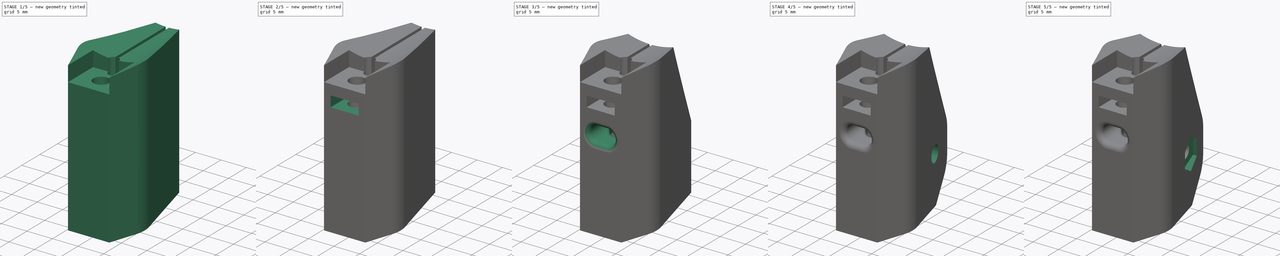
[diagram: build sequence overview — one tinted view per stage of 5, left to right]
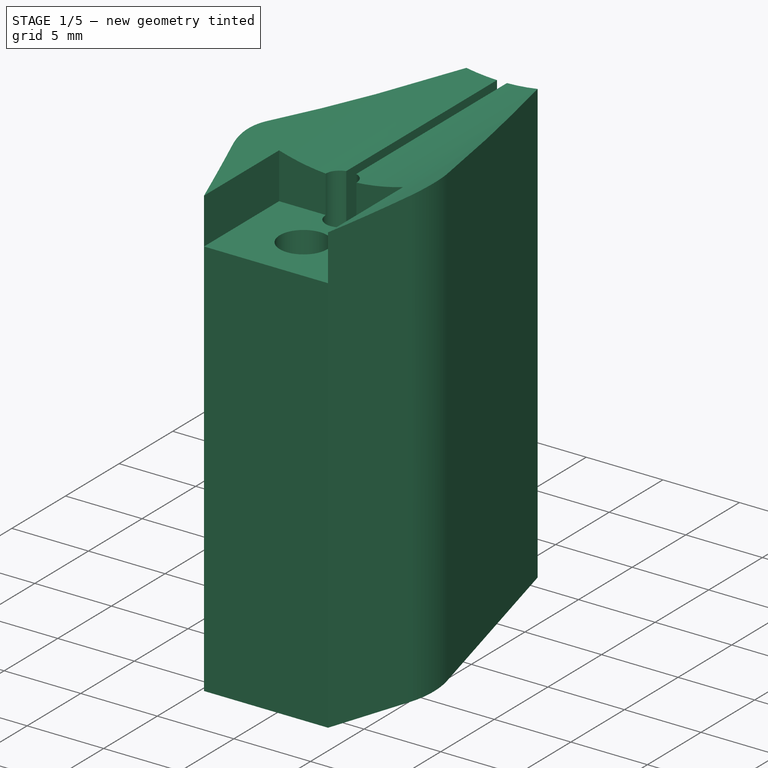
[diagram: stage 1 of 5 — iso view after this stage's code; geometry added in this stage tinted green]
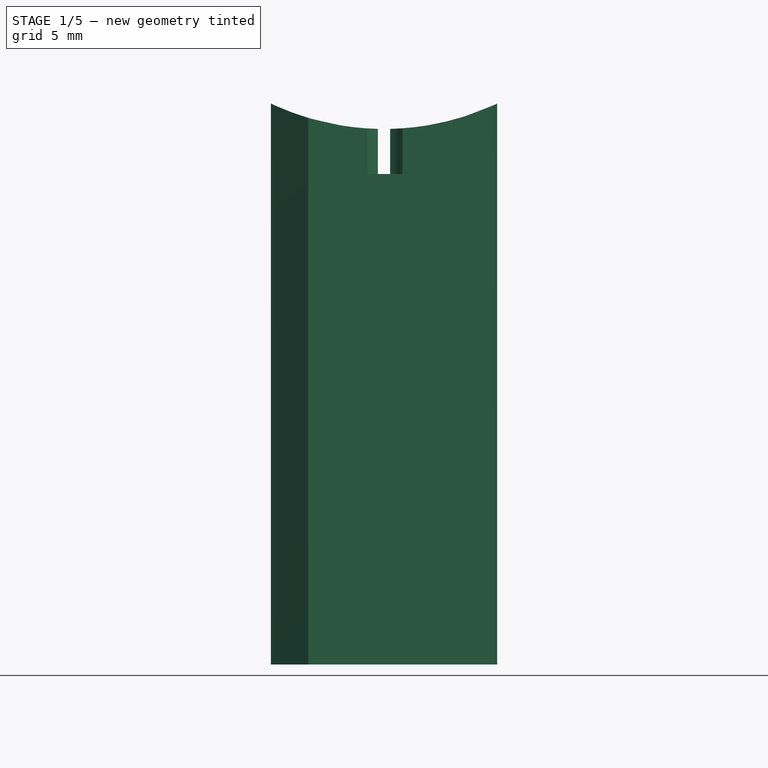
[diagram: stage 1 of 5 — front view after this stage's code; geometry added in this stage tinted green]
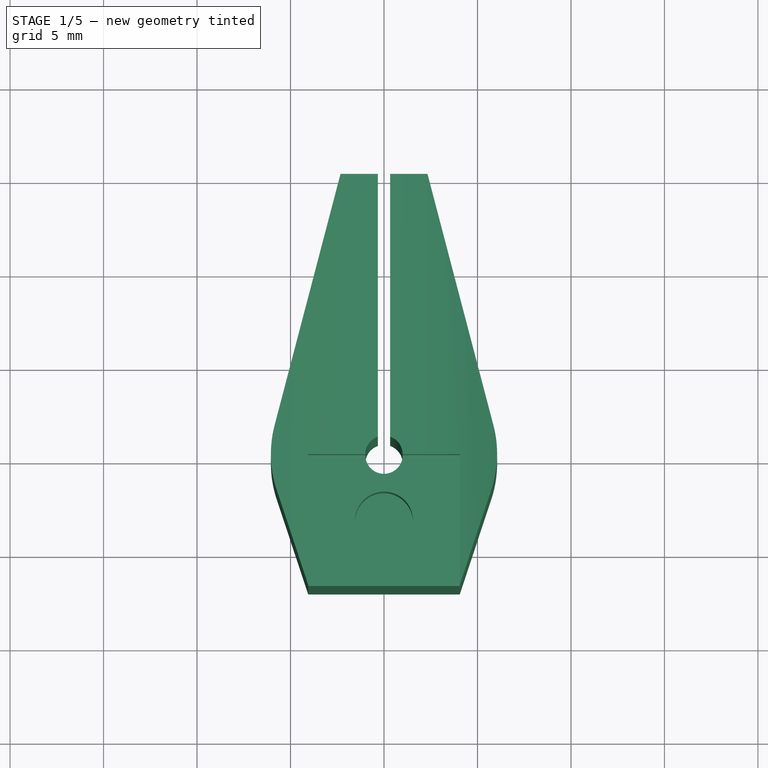
[diagram: stage 1 of 5 — top view after this stage's code; geometry added in this stage tinted green]
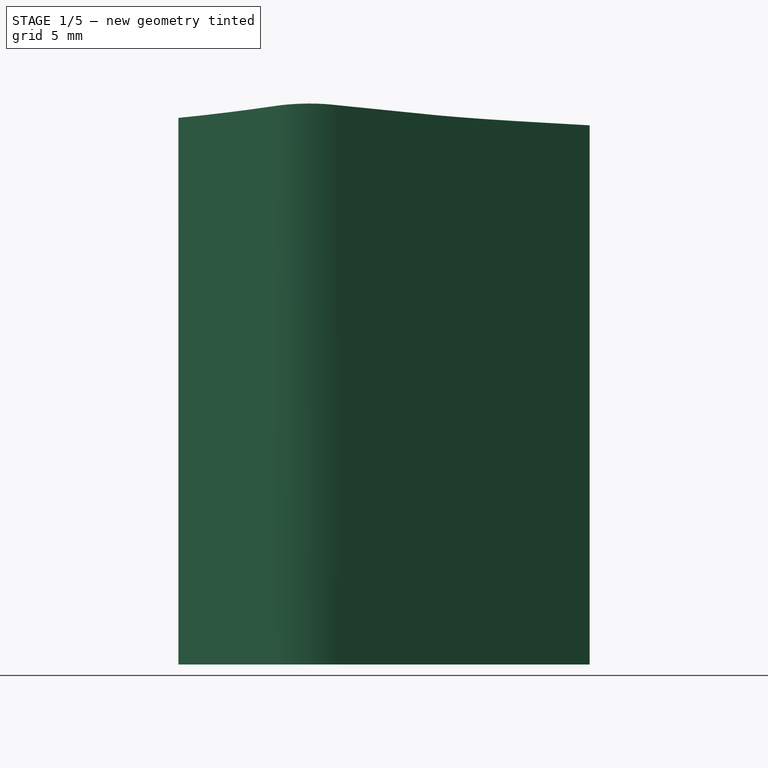
[diagram: stage 1 of 5 — right view after this stage's code; geometry added in this stage tinted green]
FCSTD DOCUMENT  (FreeCAD 0.16RUnknown)
Label: joint-i.010.bottom
License: All rights reserved
LicenseURL: http://en.wikipedia.org/wiki/All_rights_reserved
objects: Sketcher::SketchObject×11, PartDesign::Pocket×7, Part::Extrusion×4, Part::Cut×3, Part::Fillet×2, Part::Chamfer×2
note: 36 computed .brp shape members not serialized (recipe doc carries the construction recipe); baked Part::Feature solids carry a one-line shape summary decoded from their .brp

FEATURE [Sketcher::SketchObject] Sketch
  sketch-geometry (15):
    g0: Circle [constr] CenterX=0 CenterY=0 CenterZ=0 NormalX=0 NormalY=0 NormalZ=1 Radius=4.05
    g1: ArcOfCircle CenterX=0 CenterY=0 CenterZ=0 NormalX=0 NormalY=0 NormalZ=1 Radius=6.05 StartAngle=2.88541 EndAngle=3.46227
    g2: ArcOfCircle CenterX=0 CenterY=0 CenterZ=0 NormalX=0 NormalY=0 NormalZ=1 Radius=6.05 StartAngle=5.96251 EndAngle=6.53937
    g3: LineSegment StartX=-5.74158 StartY=-1.90703 StartZ=0 EndX=-4.05 EndY=-7 EndZ=0
    g4: LineSegment StartX=-4.05 StartY=-7 StartZ=0 EndX=4.05 EndY=-7 EndZ=0
    g5: LineSegment StartX=4.05 StartY=-7 StartZ=0 EndX=5.74158 EndY=-1.90703 EndZ=0
    g6: LineSegment StartX=-5.85256 StartY=1.533 StartZ=0 EndX=-2.325 EndY=15 EndZ=0
    g7: LineSegment StartX=-2.325 StartY=15 StartZ=0 EndX=-0.325 EndY=15 EndZ=0
    g8: LineSegment StartX=-0.325 StartY=15 StartZ=0 EndX=-0.325 EndY=0.945714 EndZ=0
    g9: LineSegment [constr] StartX=-0.325 StartY=0.945714 StartZ=0 EndX=0.325 EndY=0.945714 EndZ=0
    g10: LineSegment StartX=0.325 StartY=0.945714 StartZ=0 EndX=0.325 EndY=15 EndZ=0
    g11: LineSegment StartX=0.325 StartY=15 StartZ=0 EndX=2.325 EndY=15 EndZ=0
    g12: LineSegment StartX=2.325 StartY=15 StartZ=0 EndX=5.85256 EndY=1.533 EndZ=0
    g13: ArcOfCircle CenterX=0 CenterY=0 CenterZ=0 NormalX=0 NormalY=0 NormalZ=1 Radius=1 StartAngle=1.90181 EndAngle=7.52297
    g14: LineSegment [constr] StartX=4.05 StartY=0 StartZ=0 EndX=6.05 EndY=0 EndZ=0
  constraints (44):
    c: Coincident(g0,g-1)
    c: Radius(g0) = 4.05
    c: Coincident(g0,g1)
    c: Coincident(g0,g2)
    c: Equal(g1,g2)
    c: Coincident(g3,g4)
    c: Horizontal(g4)
    c: Coincident(g4,g5)
    c: Coincident(g1,g3)
    c: Coincident(g2,g5)
    c: Coincident(g6,g7)
    c: Horizontal(g7)
    c: Coincident(g7,g8)
    c: Vertical(g8)
    c: Coincident(g8,g9)
    c: Horizontal(g9)
    c: Coincident(g9,g10)
    c: Vertical(g10)
    c: Coincident(g10,g11)
    c: Horizontal(g11)
    c: Coincident(g11,g12)
    c: Coincident(g1,g6)
    c: Coincident(g2,g12)
    c: Equal(g8,g10)
    c: Coincident(g0,g13)
    c: Coincident(g8,g13)
    c: Coincident(g9,g13)
    c: Radius(g13) = 1
    c: DistanceX(g9,g9) = 0.65
    c: Horizontal(g14)
    c: PointOnObject(g14,g0)
    c: PointOnObject(g14,g2)
    c: PointOnObject(g14,g-1)
    c: DistanceX(g14,g14) = 2
    c: DistanceX(g4,g4) = 8.1
    c: Tangent(g3,g1)
    c: Tangent(g5,g2)
    c: Equal(g3,g5)
    c: DistanceY(g4,g-1) = 7
    c: Tangent(g6,g1)
    c: Tangent(g12,g2)
    c: Equal(g6,g12)
    c: DistanceX(g7,g7) = 2
    c: DistanceY(g-1,g7) = 15
FEATURE [Part::Extrusion] Extrude
  Base = -> Sketch
  Dir = (0,0,30)
  Solid = true
FEATURE [Sketcher::SketchObject] Sketch001
  ExternalGeometry = -> [Extrude]
  Placement = pos=(0,-7,0) rot=(1,0,0;1.5708rad)
  Support = -> Extrude [Face3]
  sketch-geometry (3):
    g0: LineSegment StartX=-6.05 StartY=30 StartZ=0 EndX=0 EndY=30 EndZ=0
    g1: LineSegment StartX=0 StartY=30 StartZ=0 EndX=6.05 EndY=30 EndZ=0
    g2: ArcOfCircle CenterX=0 CenterY=42.7914 CenterZ=0 NormalX=0 NormalY=0 NormalZ=1 Radius=14.15 StartAngle=4.2706 EndAngle=5.15418
  constraints (10):
    c: Horizontal(g0)
    c: Coincident(g0,g1)
    c: Horizontal(g1)
    c: PointOnObject(g0,g-2)
    c: Equal(g0,g1)
    c: PointOnObject(g0,g-3)
    c: DistanceX(g0,g1) = 12.1
    c: Coincident(g0,g2)
    c: Coincident(g1,g2)
    c: Radius(g2) = 14.15
FEATURE [PartDesign::Pocket] Pocket
  Length = 5
  Sketch = -> Sketch001
  Type = 1
FEATURE [Sketcher::SketchObject] Sketch002
  ExternalGeometry = -> [Pocket]
  Placement = pos=(0,-7,0) rot=(1,0,0;1.5708rad)
  Support = -> Pocket [Face6]
  sketch-geometry (4):
    g0: LineSegment StartX=-4.05 StartY=29.2334 StartZ=0 EndX=-4.05 EndY=26.2334 EndZ=0
    g1: LineSegment StartX=-4.05 StartY=26.2334 StartZ=0 EndX=4.05 EndY=26.2334 EndZ=0
    g2: LineSegment StartX=4.05 StartY=26.2334 StartZ=0 EndX=4.05 EndY=29.2334 EndZ=0
    g3: ArcOfCircle CenterX=0 CenterY=42.7914 CenterZ=0 NormalX=0 NormalY=0 NormalZ=1 Radius=14.15 StartAngle=4.42211 EndAngle=5.00267
  constraints (11):
    c: Vertical(g0)
    c: Coincident(g0,g1)
    c: Horizontal(g1)
    c: Coincident(g1,g2)
    c: Vertical(g2)
    c: Coincident(g0,g-3)
    c: Coincident(g2,g-3)
    c: DistanceY(g2,g2) = 3
    c: Coincident(g0,g3)
    c: Coincident(g2,g3)
    c: Equal(g3,g-3)
FEATURE [PartDesign::Pocket] Pocket001
  Length = 7
  Sketch = -> Sketch002
  Type = 0
FEATURE [Sketcher::SketchObject] Sketch003
  ExternalGeometry = -> [Pocket001]
  Placement = pos=(0,0,26.2334) rot=(0,0,1;0rad)
  Support = -> Pocket001 [Face17]
  sketch-geometry (3):
    g0: LineSegment [constr] StartX=-4.05 StartY=0 StartZ=0 EndX=-1.1e-11 EndY=-3.5 EndZ=0
    g1: LineSegment [constr] StartX=-1.1e-11 StartY=-3.5 StartZ=0 EndX=4.05 EndY=-7 EndZ=0
    g2: Circle CenterX=-1.1e-11 CenterY=-3.5 CenterZ=0 NormalX=0 NormalY=0 NormalZ=1 Radius=1.55
  constraints (7):
    c: Coincident(g0,g1)
    c: Coincident(g1,g-4)
    c: Coincident(g0,g-3)
    c: Equal(g0,g1)
    c: Parallel(g0,g1)
    c: Coincident(g0,g2)
    c: Radius(g2) = 1.55
FEATURE [PartDesign::Pocket] Pocket002
  Length = 5.5
  Sketch = -> Sketch003
  Type = 0
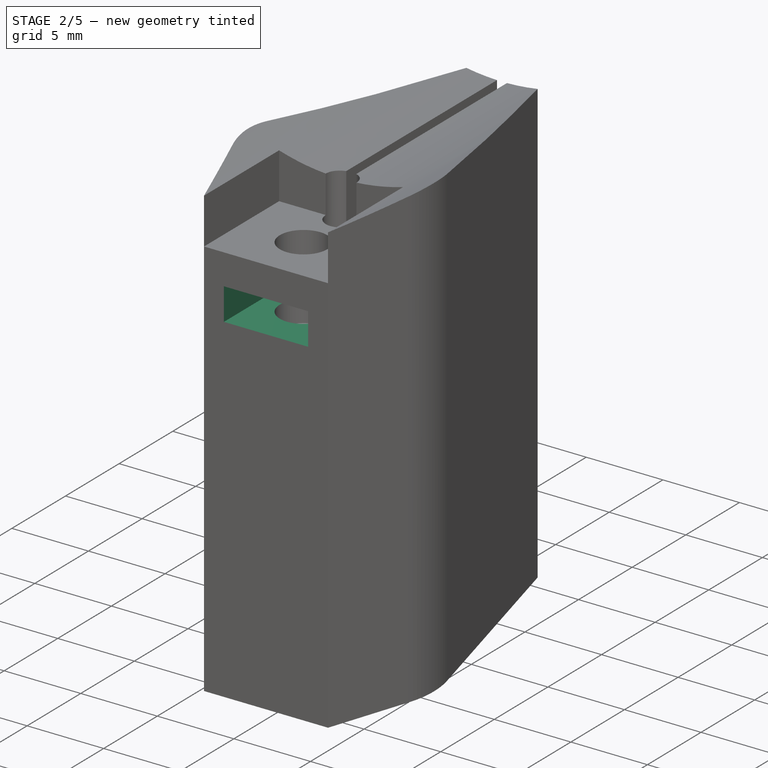
[diagram: stage 2 of 5 — iso view after this stage's code; geometry added in this stage tinted green]
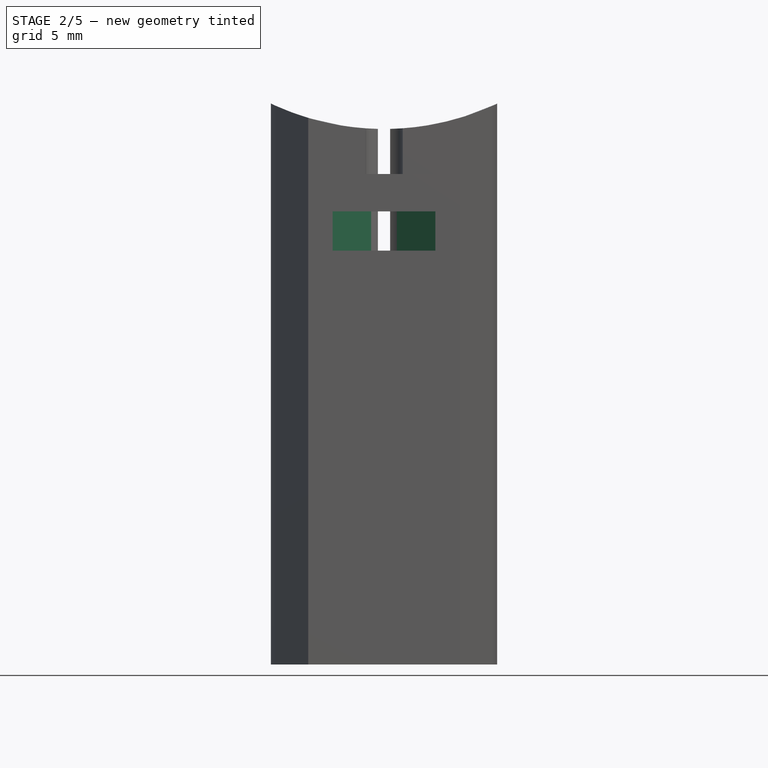
[diagram: stage 2 of 5 — front view after this stage's code; geometry added in this stage tinted green]
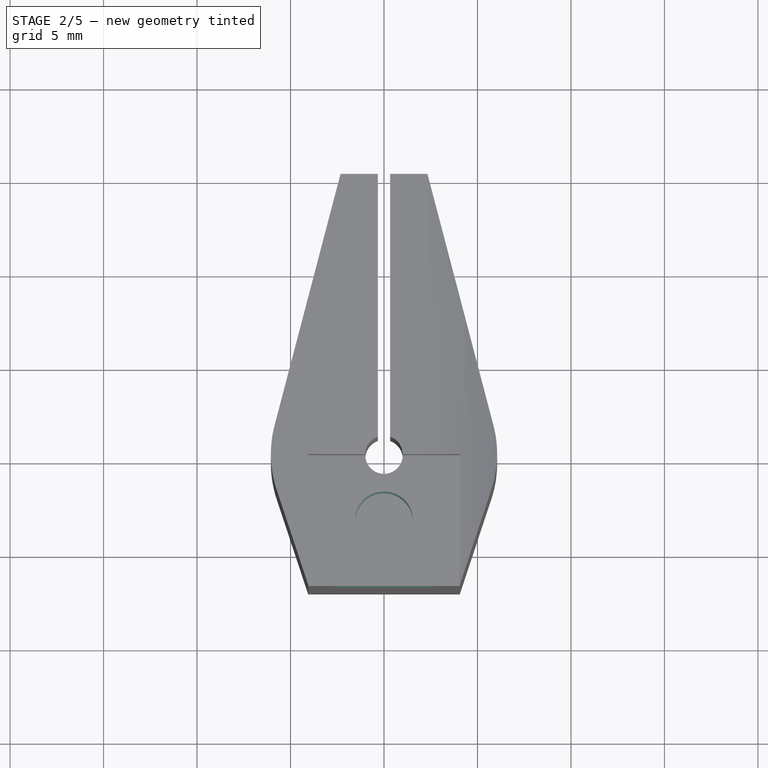
[diagram: stage 2 of 5 — top view after this stage's code; geometry added in this stage tinted green]
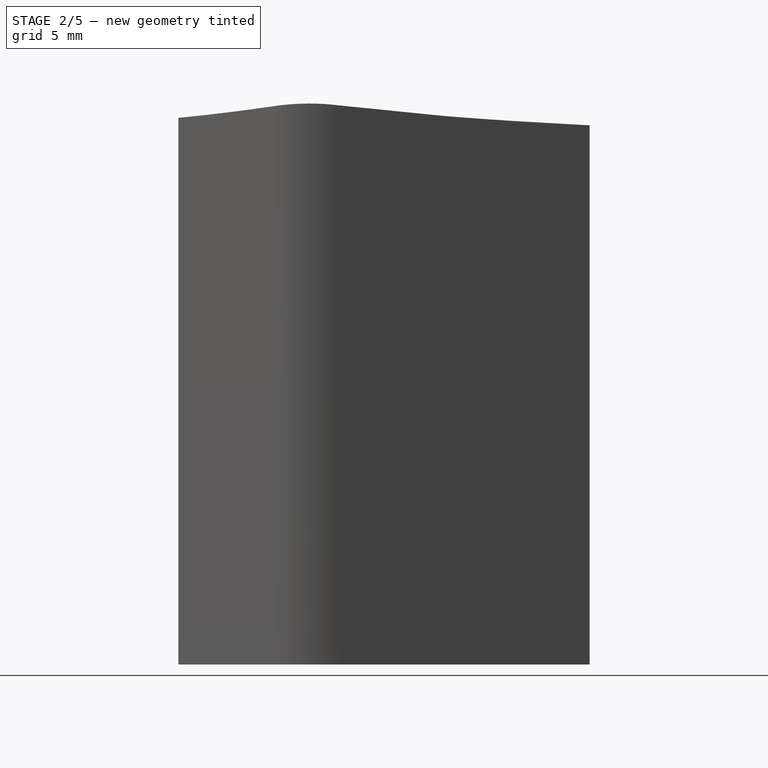
[diagram: stage 2 of 5 — right view after this stage's code; geometry added in this stage tinted green]
FEATURE [Sketcher::SketchObject] Sketch004
  ExternalGeometry = -> [Pocket002]
  Placement = pos=(0,0,26.2334) rot=(0,0,1;0rad)
  Support = -> Pocket002 [Face17]
  sketch-geometry (6):
    g0: LineSegment StartX=-2.75 StartY=-7 StartZ=0 EndX=-2.75 EndY=-1.91229 EndZ=0
    g1: LineSegment StartX=-2.75 StartY=-1.91229 StartZ=0 EndX=-1.1e-11 EndY=-0.324574 EndZ=0
    g2: LineSegment StartX=-1.1e-11 StartY=-0.324574 StartZ=0 EndX=2.75 EndY=-1.91229 EndZ=0
    g3: LineSegment StartX=2.75 StartY=-1.91229 StartZ=0 EndX=2.75 EndY=-7 EndZ=0
    g4: LineSegment StartX=2.75 StartY=-7 StartZ=0 EndX=-2.75 EndY=-7 EndZ=0
    g5: LineSegment [constr] StartX=-1.1e-11 StartY=-0.324574 StartZ=0 EndX=-1.1e-11 EndY=-3.5 EndZ=0
  constraints (17):
    c: Vertical(g0)
    c: Coincident(g0,g1)
    c: Coincident(g1,g2)
    c: Coincident(g2,g3)
    c: Vertical(g3)
    c: Coincident(g3,g4)
    c: Horizontal(g4)
    c: Coincident(g0,g4)
    c: DistanceX(g4,g4) = 5.5
    c: Angle(g1,g2) = 2.0944
    c: Equal(g1,g2)
    c: PointOnObject(g0,g-4)
    c: Vertical(g5)
    c: Coincident(g1,g5)
    c: Equal(g5,g1)
    c: Coincident(g5,g-3)
    c: Equal(g0,g3)
FEATURE [Part::Extrusion] Extrude001
  Base = -> Sketch004
  Dir = (0,0,-2.1)
  Placement = pos=(0,0,-2) rot=(0,0,1;0rad)
  Solid = true
FEATURE [Part::Cut] Cut
  Base = -> Pocket002
  Tool = -> Extrude001
FEATURE [Sketcher::SketchObject] Sketch005
  Placement = pos=(0,0,0) rot=(1,0,0;3.14159rad)
  Support = -> Cut [Face2]
  sketch-geometry (1):
    g0: Circle CenterX=0 CenterY=0 CenterZ=0 NormalX=0 NormalY=0 NormalZ=1 Radius=4.05
  constraints (2):
    c: Coincident(g0,g-1)
    c: Radius(g0) = 4.05
FEATURE [PartDesign::Pocket] Pocket003
  Length = 15
  Sketch = -> Sketch005
  Type = 0
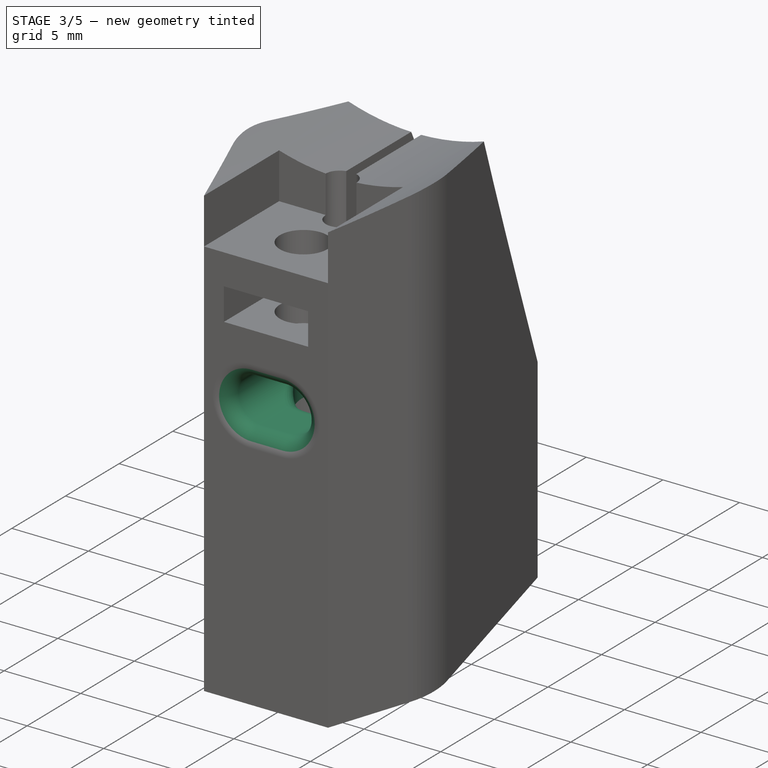
[diagram: stage 3 of 5 — iso view after this stage's code; geometry added in this stage tinted green]
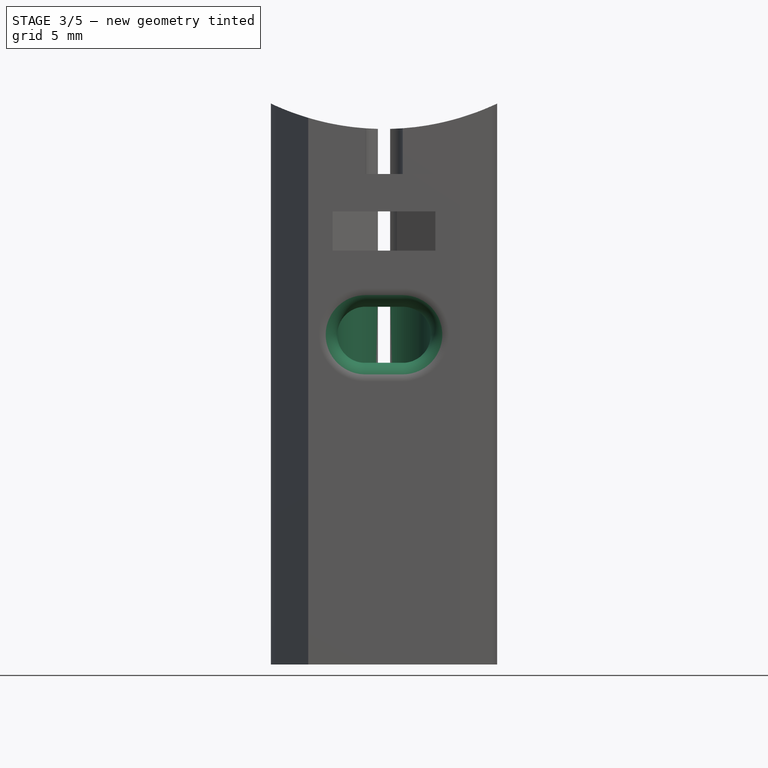
[diagram: stage 3 of 5 — front view after this stage's code; geometry added in this stage tinted green]
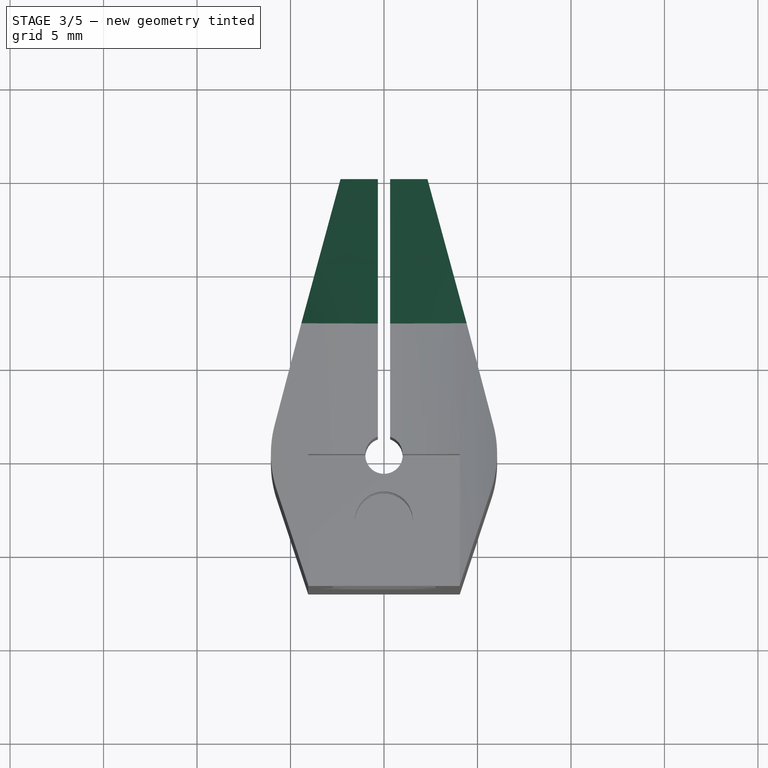
[diagram: stage 3 of 5 — top view after this stage's code; geometry added in this stage tinted green]
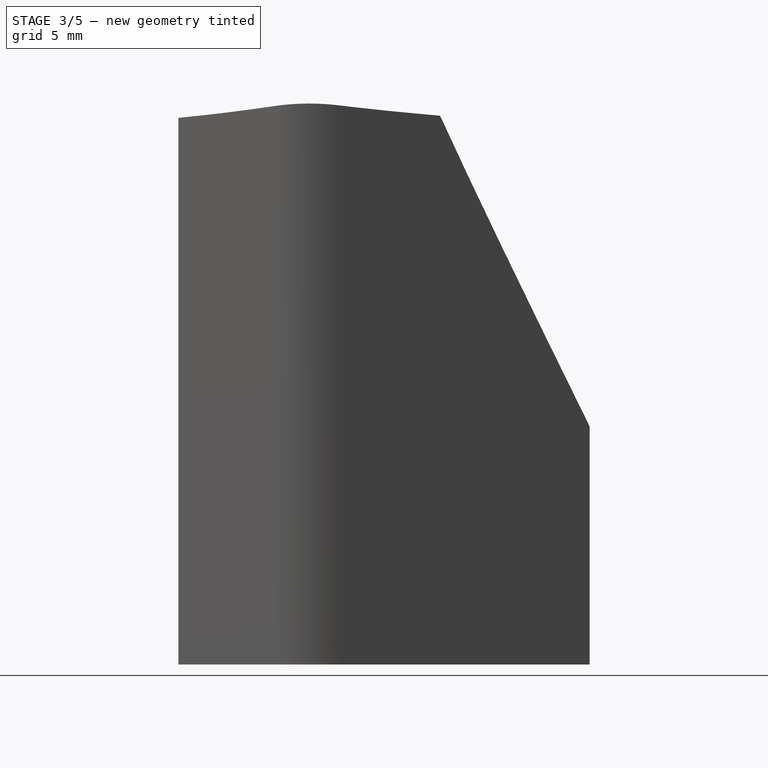
[diagram: stage 3 of 5 — right view after this stage's code; geometry added in this stage tinted green]
FEATURE [Sketcher::SketchObject] Sketch006
  ExternalGeometry = -> [Pocket003]
  Placement = pos=(0,0,15) rot=(1,0,0;3.14159rad)
  Support = -> Pocket003 [Face19]
  sketch-geometry (2):
    g0: Circle CenterX=0 CenterY=0 CenterZ=0 NormalX=0 NormalY=0 NormalZ=1 Radius=2.55
    g1: LineSegment [constr] StartX=2.55 StartY=0 StartZ=0 EndX=4.05 EndY=0 EndZ=0
  constraints (5):
    c: Coincident(g0,g-3)
    c: Horizontal(g1)
    c: Coincident(g1,g-3)
    c: PointOnObject(g1,g0)
    c: DistanceX(g1,g1) = 1.5
FEATURE [PartDesign::Pocket] Pocket004
  Length = 5
  Sketch = -> Sketch006
  Type = 0
FEATURE [Sketcher::SketchObject] Sketch007
  ExternalGeometry = -> [Pocket004]
  Placement = pos=(0,-7,0) rot=(1,0,0;1.5708rad)
  Support = -> Pocket004 [Face15]
  sketch-geometry (8):
    g0: LineSegment StartX=-1 StartY=19.1334 StartZ=0 EndX=1 EndY=19.1334 EndZ=0
    g1: LineSegment [constr] StartX=1 StartY=19.1334 StartZ=0 EndX=1 EndY=16.1334 EndZ=0
    g2: LineSegment StartX=1 StartY=16.1334 StartZ=0 EndX=-1 EndY=16.1334 EndZ=0
    g3: LineSegment [constr] StartX=-1 StartY=16.1334 StartZ=0 EndX=-1 EndY=19.1334 EndZ=0
    g4: ArcOfCircle CenterX=-1 CenterY=17.6334 CenterZ=0 NormalX=0 NormalY=0 NormalZ=1 Radius=1.5 StartAngle=1.5708 EndAngle=4.71239
    g5: ArcOfCircle CenterX=1 CenterY=17.6334 CenterZ=0 NormalX=0 NormalY=0 NormalZ=1 Radius=1.5 StartAngle=4.71239 EndAngle=7.85398
    g6: LineSegment [constr] StartX=-2.75 StartY=22.1334 StartZ=0 EndX=-1 EndY=19.1334 EndZ=0
    g7: LineSegment [constr] StartX=1 StartY=19.1334 StartZ=0 EndX=2.75 EndY=22.1334 EndZ=0
  constraints (22):
    c: Coincident(g0,g1)
    c: Coincident(g1,g2)
    c: Coincident(g2,g3)
    c: Coincident(g3,g0)
    c: Horizontal(g0)
    c: Horizontal(g2)
    c: Vertical(g1)
    c: Vertical(g3)
    c: PointOnObject(g5,g1)
    c: PointOnObject(g4,g3)
    c: Coincident(g0,g4)
    c: Coincident(g2,g4)
    c: Coincident(g1,g5)
    c: Coincident(g0,g5)
    c: DistanceY(g1,g1) = 3
    c: DistanceY(g0,g-3) = 3
    c: DistanceX(g2,g2) = 2
    c: Coincident(g7,g-3)
    c: Coincident(g0,g7)
    c: Coincident(g0,g6)
    c: Coincident(g6,g-3)
    c: Equal(g6,g7)
FEATURE [PartDesign::Pocket] Pocket005
  Length = 7
  Sketch = -> Sketch007
  Type = 0
  UpToFace = -> Pocket004 [Face23]
FEATURE [Part::Fillet] Fillet
  Base = -> Pocket005
  Edges = 9 edges r=1: [Edge55,Edge56,Edge57,Edge58,Edge79,Edge80,Edge81,Edge82,Edge83]
FEATURE [Part::Chamfer] Chamfer
  Base = -> Fillet
  Edges = 2 edges: [Edge73 r1=16 r2=8,Edge91 r1=16 r2=8]
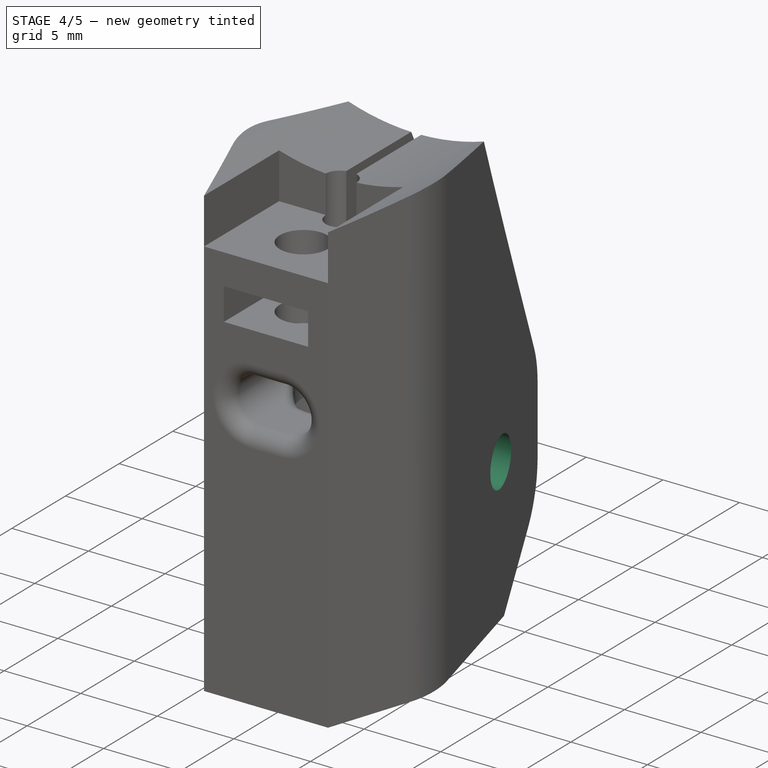
[diagram: stage 4 of 5 — iso view after this stage's code; geometry added in this stage tinted green]
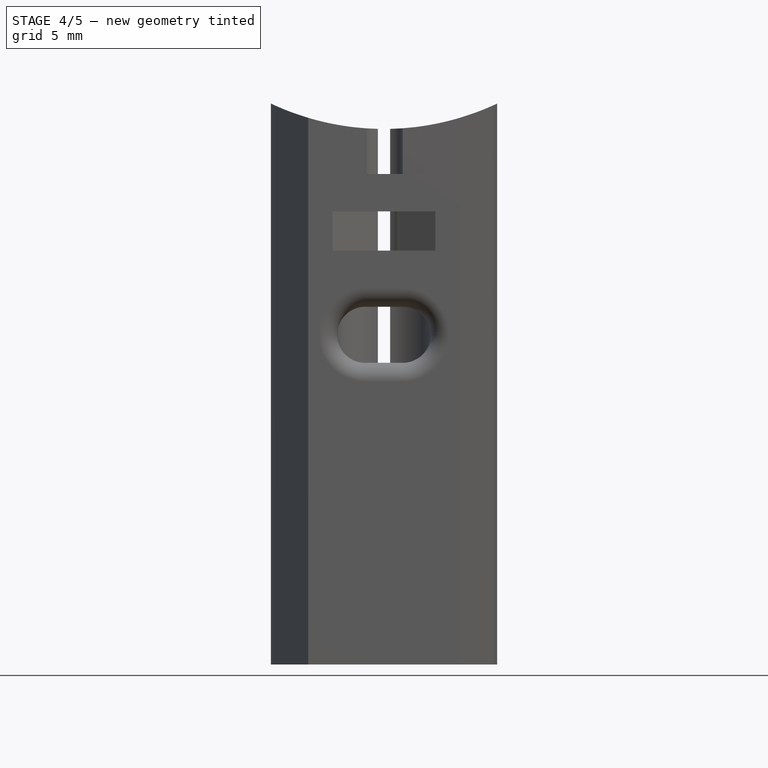
[diagram: stage 4 of 5 — front view after this stage's code; geometry added in this stage tinted green]
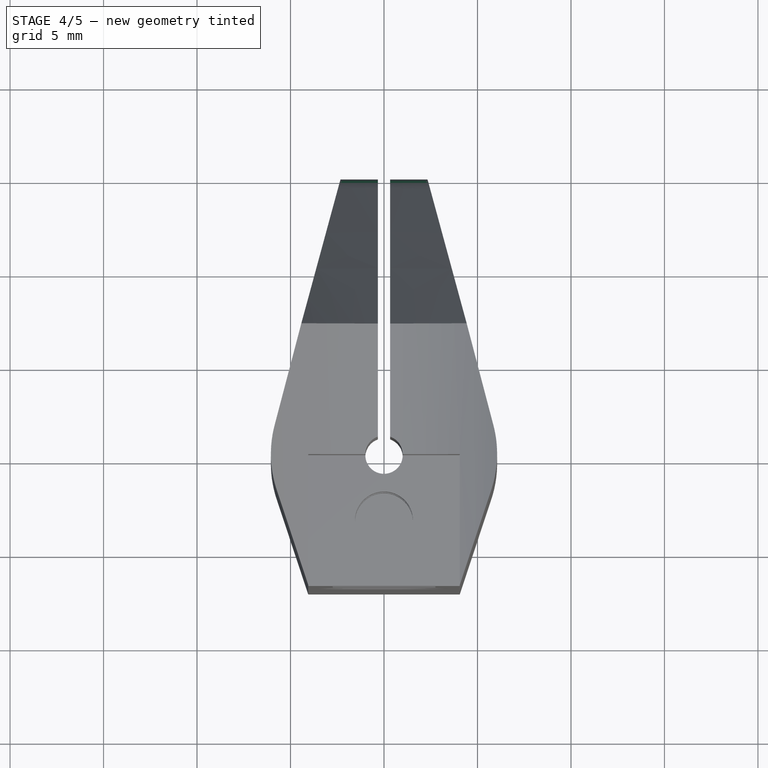
[diagram: stage 4 of 5 — top view after this stage's code; geometry added in this stage tinted green]
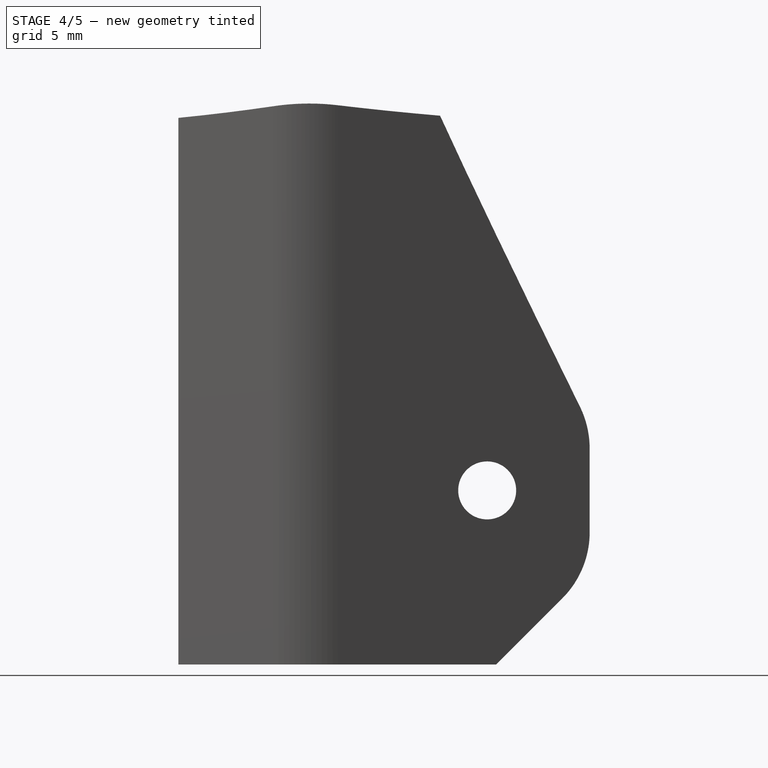
[diagram: stage 4 of 5 — right view after this stage's code; geometry added in this stage tinted green]
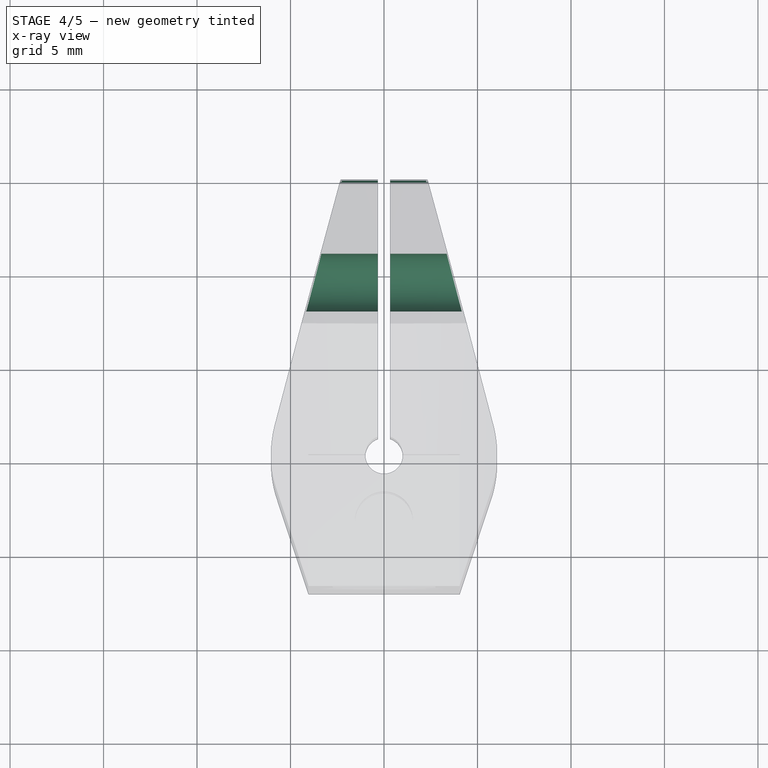
[diagram: stage 4 of 5 — x-ray composite at the top view; earlier geometry ghosted, this stage's added geometry solid]
FEATURE [Part::Chamfer] Chamfer001
  Base = -> Chamfer
  Edges = 2 edges r=5: [Edge8,Edge15]
FEATURE [Part::Fillet] Fillet001
  Base = -> Chamfer001
  Edges = 4 edges r=5: [Edge8,Edge9,Edge68,Edge124]
FEATURE [Sketcher::SketchObject] Sketch008
  ExternalGeometry = -> [Fillet001]
  Placement = pos=(-0.325,0,0) rot=(0.57735,0.57735,0.57735;2.0944rad)
  Support = -> Fillet001 [Face10]
  sketch-geometry (5):
    g0: LineSegment [constr] StartX=15 StartY=11.5475 StartZ=0 EndX=15 EndY=9.30926 EndZ=0
    g1: LineSegment [constr] StartX=15 StartY=9.30926 StartZ=0 EndX=15 EndY=7.07107 EndZ=0
    g2: LineSegment [constr] StartX=4.03694 StartY=9.30926 StartZ=0 EndX=9.51847 EndY=9.30926 EndZ=0
    g3: LineSegment [constr] StartX=9.51847 StartY=9.30926 StartZ=0 EndX=15 EndY=9.30926 EndZ=0
    g4: Circle CenterX=9.51847 CenterY=9.30926 CenterZ=0 NormalX=0 NormalY=0 NormalZ=1 Radius=1.55
  constraints (14):
    c: Vertical(g0)
    c: Coincident(g0,g1)
    c: Vertical(g1)
    c: Horizontal(g2)
    c: Coincident(g2,g3)
    c: Horizontal(g3)
    c: Coincident(g0,g3)
    c: Equal(g0,g1)
    c: Equal(g3,g2)
    c: PointOnObject(g2,g-4)
    c: Coincident(g0,g-3)
    c: Coincident(g1,g-3)
    c: Coincident(g2,g4)
    c: Radius(g4) = 1.55
FEATURE [PartDesign::Pocket] Pocket006
  Length = 5
  Midplane = true
  Sketch = -> Sketch008
  Type = 1
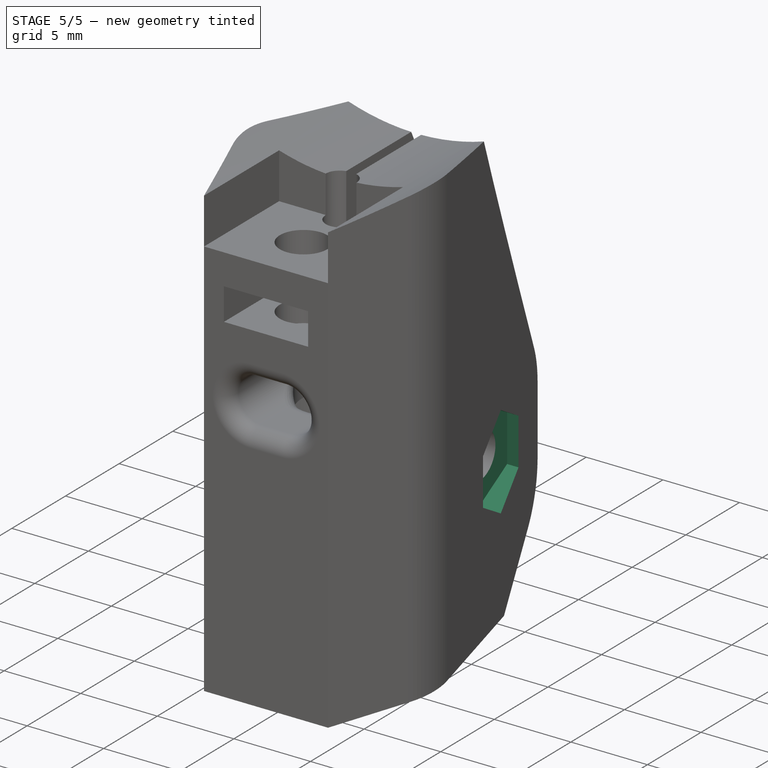
[diagram: stage 5 of 5 — iso view after this stage's code; geometry added in this stage tinted green]
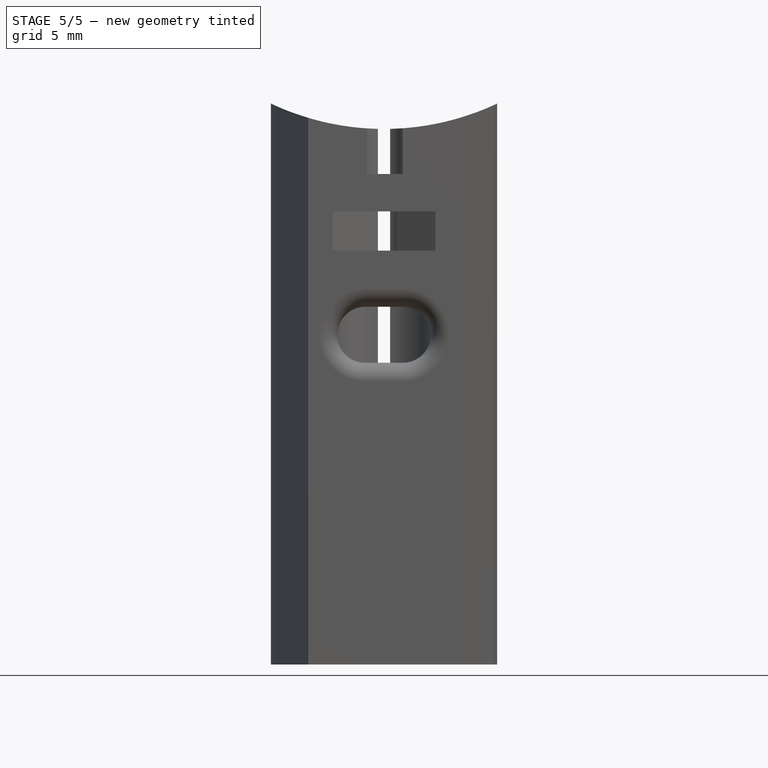
[diagram: stage 5 of 5 — front view after this stage's code; geometry added in this stage tinted green]
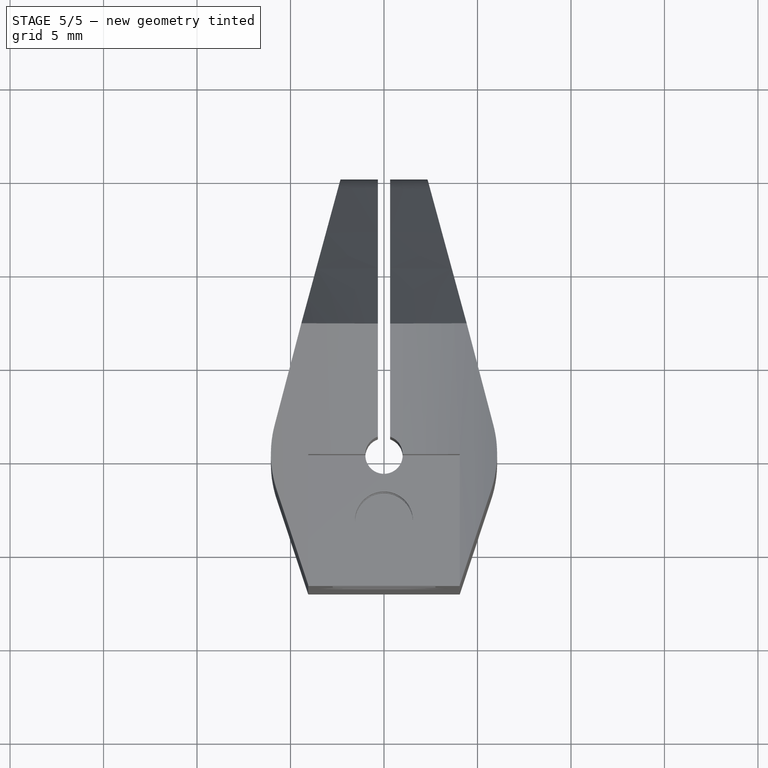
[diagram: stage 5 of 5 — top view after this stage's code; geometry added in this stage tinted green]
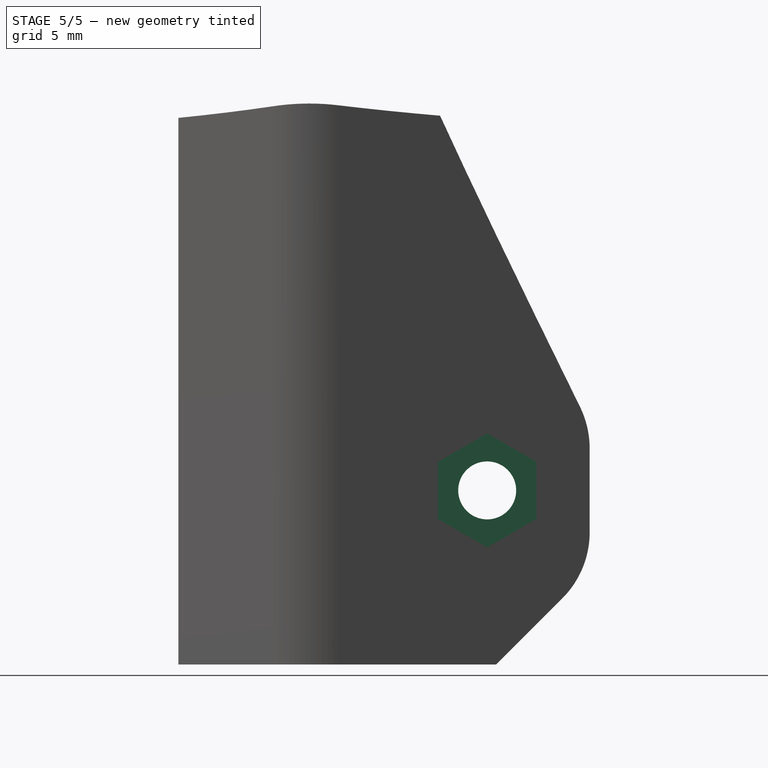
[diagram: stage 5 of 5 — right view after this stage's code; geometry added in this stage tinted green]
FEATURE [Sketcher::SketchObject] Sketch009
  ExternalGeometry = -> [Pocket006]
  Placement = pos=(-0.325,0,0) rot=(0.57735,0.57735,0.57735;2.0944rad)
  Support = -> Pocket006 [Face11]
  sketch-geometry (1):
    g0: Circle CenterX=9.51847 CenterY=9.30926 CenterZ=0 NormalX=0 NormalY=0 NormalZ=1 Radius=3.05
  constraints (2):
    c: Coincident(g0,g-3)
    c: Radius(g0) = 3.05
FEATURE [Sketcher::SketchObject] Sketch010
  ExternalGeometry = -> [Pocket006]
  Placement = pos=(0.325,0,0) rot=(0.57735,-0.57735,-0.57735;2.0944rad)
  Support = -> Pocket006 [Face17]
  sketch-geometry (7):
    g0: LineSegment StartX=-9.51847 StartY=12.3593 StartZ=0 EndX=-12.1598 EndY=10.8343 EndZ=0
    g1: LineSegment StartX=-12.1598 StartY=10.8343 StartZ=0 EndX=-12.1598 EndY=7.78426 EndZ=0
    g2: LineSegment StartX=-12.1598 StartY=7.78426 StartZ=0 EndX=-9.51847 EndY=6.25926 EndZ=0
    g3: LineSegment StartX=-9.51847 StartY=6.25926 StartZ=0 EndX=-6.87709 EndY=7.78426 EndZ=0
    g4: LineSegment StartX=-6.87709 StartY=7.78426 StartZ=0 EndX=-6.87709 EndY=10.8343 EndZ=0
    g5: LineSegment StartX=-6.87709 StartY=10.8343 StartZ=0 EndX=-9.51847 EndY=12.3593 EndZ=0
    g6: Circle [constr] CenterX=-9.51847 CenterY=9.30926 CenterZ=0 NormalX=0 NormalY=0 NormalZ=1 Radius=3.05
  constraints (16):
    c: Coincident(g0,g1)
    c: Coincident(g1,g2)
    c: Coincident(g2,g3)
    c: Coincident(g3,g4)
    c: Coincident(g4,g5)
    c: Coincident(g5,g0)
    c: Equal(g0, g1-g5) x5
    c: PointOnObject(g0,g6)
    c: PointOnObject(g1,g6)
    c: PointOnObject(g2,g6)
    c: PointOnObject(g3,g6)
    c: PointOnObject(g4,g6)
    c: PointOnObject(g5,g6)
    c: Vertical(g4)
    c: Coincident(g6,g-3)
    c: Radius(g6) = 3.05
FEATURE [Part::Extrusion] Extrude002
  Base = -> Sketch009
  Dir = (-10,0,0)
  Placement = pos=(-2,0,0) rot=(0,0,1;0rad)
  Solid = true
FEATURE [Part::Extrusion] Extrude003
  Base = -> Sketch010
  Dir = (10,0,0)
  Placement = pos=(2,0,0) rot=(0,0,1;0rad)
  Solid = true
FEATURE [Part::Cut] Cut001
  Base = -> Pocket006
  Tool = -> Extrude002
FEATURE [Part::Cut] Cut002
  Base = -> Cut001
  Tool = -> Extrude003
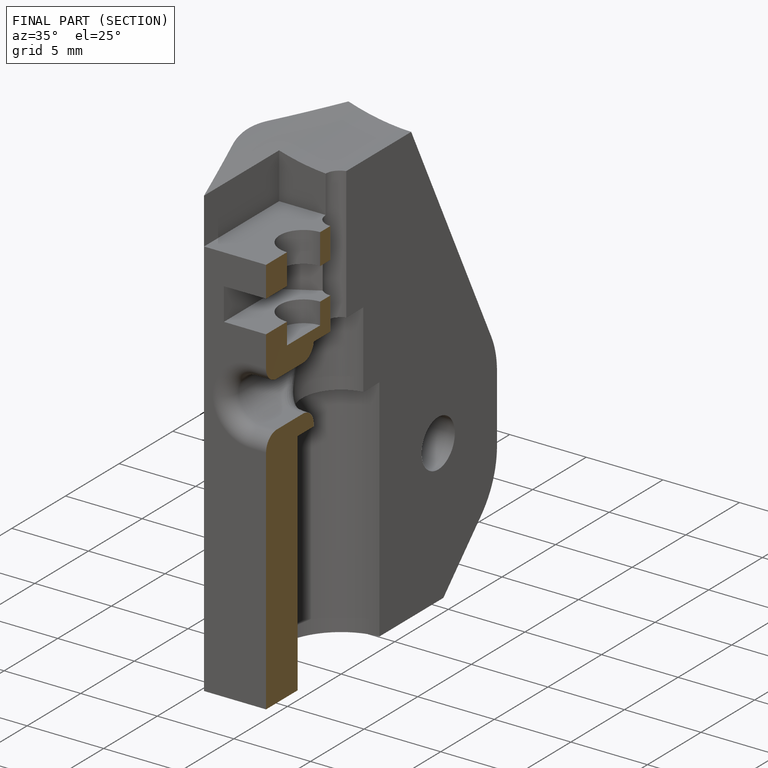
[diagram: finished part — half-section view (interior)]
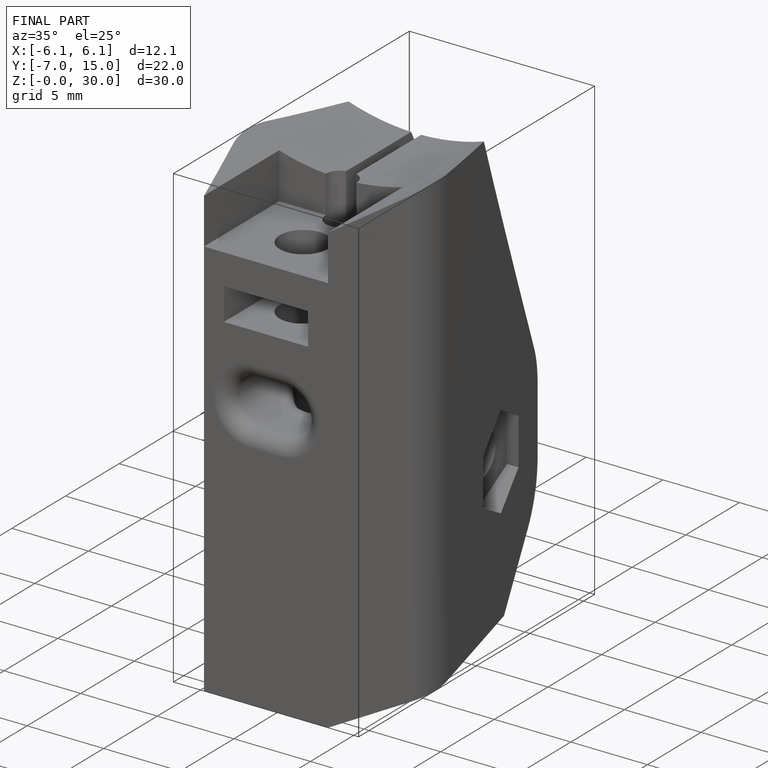
[diagram: finished part — iso view with bounding-box wireframe]
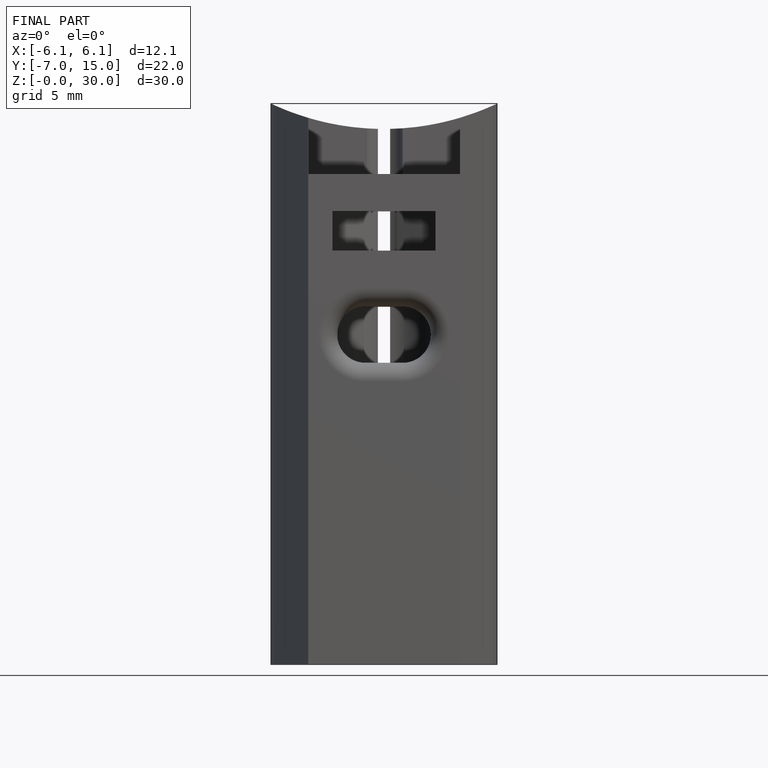
[diagram: finished part — front view with bounding-box wireframe]
